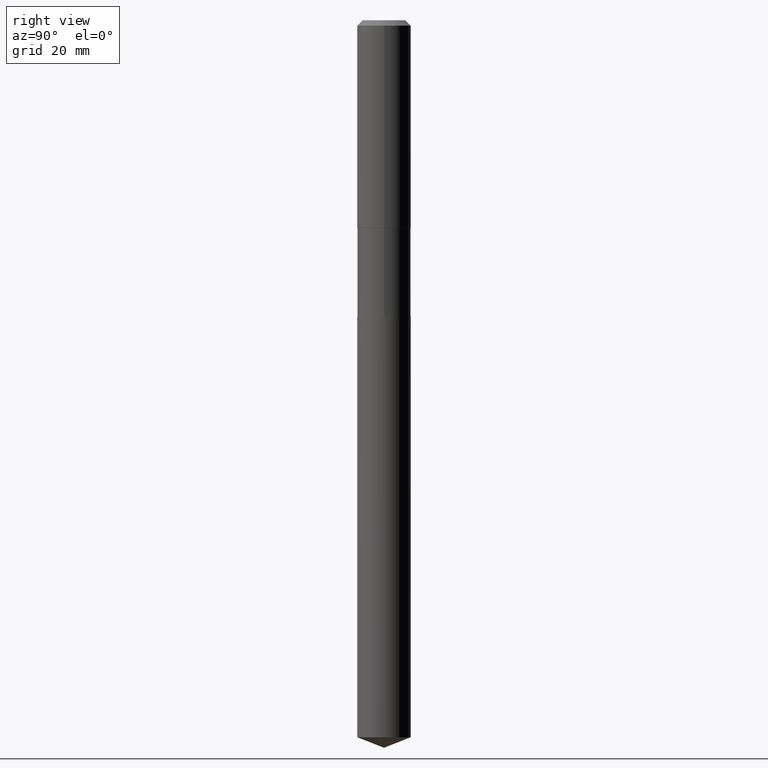
[diagram: clean part render]
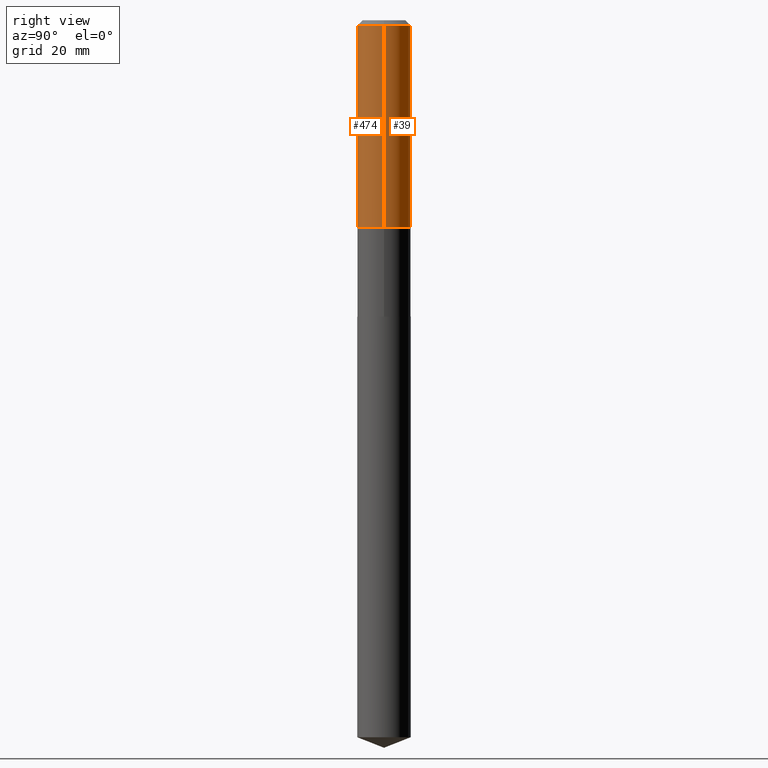
[diagram: same view with one multi-face feature highlighted, each face labeled with its STEP entity id]
A machine part, right view. The highlighted faces form ONE feature: a constant-radius fillet chain: 2 tangent blend faces with common blend radius 5.9995 mm. The faces share edges in the B-rep.
Their STEP definitions:
[1] entity #474 (Cylinder):
#2 = CARTESIAN_POINT ( 'NONE',  ( -0.2362000000000001321, 1.678301941865357577E-15, -1.161852468318209457E-29 ) ) ;
#12 = DIRECTION ( 'NONE',  ( -2.445468806185136597E-29, 3.491481338843145583E-15, 1.000000000000000000 ) ) ;
#60 = VERTEX_POINT ( 'NONE', #222 ) ;
#62 = EDGE_LOOP ( 'NONE', ( #159, #336, #251, #245 ) ) ;
#86 = CIRCLE ( 'NONE', #262, 0.2362000000000000210 ) ;
#91 = DIRECTION ( 'NONE',  ( 1.000000000000000000, -6.982962677686266711E-15, 4.876176775795936353E-29 ) ) ;
#97 = AXIS2_PLACEMENT_3D ( 'NONE', #213, #405, #91 ) ;
#134 = VERTEX_POINT ( 'NONE', #401 ) ;
#138 = DIRECTION ( 'NONE',  ( 1.000000000000000000, -6.982962677686267499E-15, 0.000000000000000000 ) ) ;
#150 = CARTESIAN_POINT ( 'NONE',  ( -0.2362000000000002153, -4.667814539615944237E-15, -1.817600000000000104 ) ) ;
#155 = LINE ( 'NONE', #237, #384 ) ;
#159 = ORIENTED_EDGE ( 'NONE', *, *, #328, .F. ) ;
#174 = AXIS2_PLACEMENT_3D ( 'NONE', #307, #12, #457 ) ;
#187 = CARTESIAN_POINT ( 'NONE',  ( 1.155239464041866207E-30, -1.649375784469512845E-16, -0.04724000000000030952 ) ) ;
#199 = EDGE_CURVE ( 'NONE', #60, #413, #86, .T. ) ;
#203 = DIRECTION ( 'NONE',  ( -2.445468806185136877E-29, 3.491481338843145188E-15, 1.000000000000000000 ) ) ;
#213 = CARTESIAN_POINT ( 'NONE',  ( 0.000000000000000000, 0.000000000000000000, 0.000000000000000000 ) ) ;
#222 = CARTESIAN_POINT ( 'NONE',  ( -0.2362000000000000210, -1.577225088098769181E-15, -0.04724000000000030952 ) ) ;
#226 = LINE ( 'NONE', #2, #378 ) ;
#237 = CARTESIAN_POINT ( 'NONE',  ( 0.2362000000000001321, -1.649375784469497117E-15, 1.151752954443000789E-29 ) ) ;
#245 = ORIENTED_EDGE ( 'NONE', *, *, #199, .F. ) ;
#248 = VERTEX_POINT ( 'NONE', #150 ) ;
#251 = ORIENTED_EDGE ( 'NONE', *, *, #438, .T. ) ;
#262 = AXIS2_PLACEMENT_3D ( 'NONE', #187, #481, #138 ) ;
#292 = CYLINDRICAL_SURFACE ( 'NONE', #97, 0.2362000000000001321 ) ;
#307 = CARTESIAN_POINT ( 'NONE',  ( 4.444884102122104078E-29, -6.346116481481302209E-15, -1.817600000000000104 ) ) ;
#328 = EDGE_CURVE ( 'NONE', #248, #60, #226, .T. ) ;
#336 = ORIENTED_EDGE ( 'NONE', *, *, #452, .T. ) ;
#343 = DIRECTION ( 'NONE',  ( -2.445468806185136877E-29, 3.491481338843145188E-15, 1.000000000000000000 ) ) ;
#357 = CARTESIAN_POINT ( 'NONE',  ( 0.2362000000000000210, -1.814313362916447834E-15, -0.04724000000000030952 ) ) ;
#361 = CIRCLE ( 'NONE', #174, 0.2362000000000002153 ) ;
#378 = VECTOR ( 'NONE', #343, 39.37007874015748143 ) ;
#384 = VECTOR ( 'NONE', #203, 39.37007874015748143 ) ;
#401 = CARTESIAN_POINT ( 'NONE',  ( 0.2362000000000002153, -7.995492265950798734E-15, -1.817600000000000104 ) ) ;
#405 = DIRECTION ( 'NONE',  ( -2.445468806185136597E-29, 3.491481338843145583E-15, 1.000000000000000000 ) ) ;
#413 = VERTEX_POINT ( 'NONE', #357 ) ;
#438 = EDGE_CURVE ( 'NONE', #134, #413, #155, .T. ) ;
#452 = EDGE_CURVE ( 'NONE', #248, #134, #361, .T. ) ;
#457 = DIRECTION ( 'NONE',  ( 1.000000000000000000, -6.982962677686266711E-15, 0.000000000000000000 ) ) ;
#470 = FACE_OUTER_BOUND ( 'NONE', #62, .T. ) ;
#474 = ADVANCED_FACE ( 'NONE', ( #470 ), #292, .T. ) ;
#481 = DIRECTION ( 'NONE',  ( -2.445468806185136597E-29, 3.491481338843145583E-15, 1.000000000000000000 ) ) ;
[2] entity #39 (Cylinder):
#2 = CARTESIAN_POINT ( 'NONE',  ( -0.2362000000000001321, 1.678301941865357577E-15, -1.161852468318209457E-29 ) ) ;
#4 = EDGE_CURVE ( 'NONE', #413, #60, #53, .T. ) ;
#18 = DIRECTION ( 'NONE',  ( 1.000000000000000000, -6.982962677686267499E-15, 0.000000000000000000 ) ) ;
#39 = ADVANCED_FACE ( 'NONE', ( #312 ), #167, .T. ) ;
#53 = CIRCLE ( 'NONE', #289, 0.2362000000000000210 ) ;
#60 = VERTEX_POINT ( 'NONE', #222 ) ;
#134 = VERTEX_POINT ( 'NONE', #401 ) ;
#137 = ORIENTED_EDGE ( 'NONE', *, *, #438, .F. ) ;
#150 = CARTESIAN_POINT ( 'NONE',  ( -0.2362000000000002153, -4.667814539615944237E-15, -1.817600000000000104 ) ) ;
#155 = LINE ( 'NONE', #237, #384 ) ;
#167 = CYLINDRICAL_SURFACE ( 'NONE', #341, 0.2362000000000001321 ) ;
#203 = DIRECTION ( 'NONE',  ( -2.445468806185136877E-29, 3.491481338843145188E-15, 1.000000000000000000 ) ) ;
#207 = EDGE_CURVE ( 'NONE', #134, #248, #250, .T. ) ;
#222 = CARTESIAN_POINT ( 'NONE',  ( -0.2362000000000000210, -1.577225088098769181E-15, -0.04724000000000030952 ) ) ;
#226 = LINE ( 'NONE', #2, #378 ) ;
#237 = CARTESIAN_POINT ( 'NONE',  ( 0.2362000000000001321, -1.649375784469497117E-15, 1.151752954443000789E-29 ) ) ;
#239 = CARTESIAN_POINT ( 'NONE',  ( 1.155239464041866207E-30, -1.649375784469512845E-16, -0.04724000000000030952 ) ) ;
#248 = VERTEX_POINT ( 'NONE', #150 ) ;
#250 = CIRCLE ( 'NONE', #332, 0.2362000000000002153 ) ;
#255 = CARTESIAN_POINT ( 'NONE',  ( 4.444884102122104078E-29, -6.346116481481302209E-15, -1.817600000000000104 ) ) ;
#289 = AXIS2_PLACEMENT_3D ( 'NONE', #239, #390, #18 ) ;
#312 = FACE_OUTER_BOUND ( 'NONE', #425, .T. ) ;
#315 = CARTESIAN_POINT ( 'NONE',  ( 0.000000000000000000, 0.000000000000000000, 0.000000000000000000 ) ) ;
#317 = ORIENTED_EDGE ( 'NONE', *, *, #207, .T. ) ;
#328 = EDGE_CURVE ( 'NONE', #248, #60, #226, .T. ) ;
#332 = AXIS2_PLACEMENT_3D ( 'NONE', #255, #408, #374 ) ;
#341 = AXIS2_PLACEMENT_3D ( 'NONE', #315, #466, #356 ) ;
#343 = DIRECTION ( 'NONE',  ( -2.445468806185136877E-29, 3.491481338843145188E-15, 1.000000000000000000 ) ) ;
#356 = DIRECTION ( 'NONE',  ( 1.000000000000000000, -6.982962677686266711E-15, 4.876176775795936353E-29 ) ) ;
#357 = CARTESIAN_POINT ( 'NONE',  ( 0.2362000000000000210, -1.814313362916447834E-15, -0.04724000000000030952 ) ) ;
#374 = DIRECTION ( 'NONE',  ( 1.000000000000000000, -6.982962677686266711E-15, 0.000000000000000000 ) ) ;
#378 = VECTOR ( 'NONE', #343, 39.37007874015748143 ) ;
#384 = VECTOR ( 'NONE', #203, 39.37007874015748143 ) ;
#390 = DIRECTION ( 'NONE',  ( -2.445468806185136597E-29, 3.491481338843145583E-15, 1.000000000000000000 ) ) ;
#397 = ORIENTED_EDGE ( 'NONE', *, *, #328, .T. ) ;
#401 = CARTESIAN_POINT ( 'NONE',  ( 0.2362000000000002153, -7.995492265950798734E-15, -1.817600000000000104 ) ) ;
#408 = DIRECTION ( 'NONE',  ( -2.445468806185136597E-29, 3.491481338843145583E-15, 1.000000000000000000 ) ) ;
#413 = VERTEX_POINT ( 'NONE', #357 ) ;
#425 = EDGE_LOOP ( 'NONE', ( #317, #397, #475, #137 ) ) ;
#438 = EDGE_CURVE ( 'NONE', #134, #413, #155, .T. ) ;
#466 = DIRECTION ( 'NONE',  ( -2.445468806185136597E-29, 3.491481338843145583E-15, 1.000000000000000000 ) ) ;
#475 = ORIENTED_EDGE ( 'NONE', *, *, #4, .F. ) ;